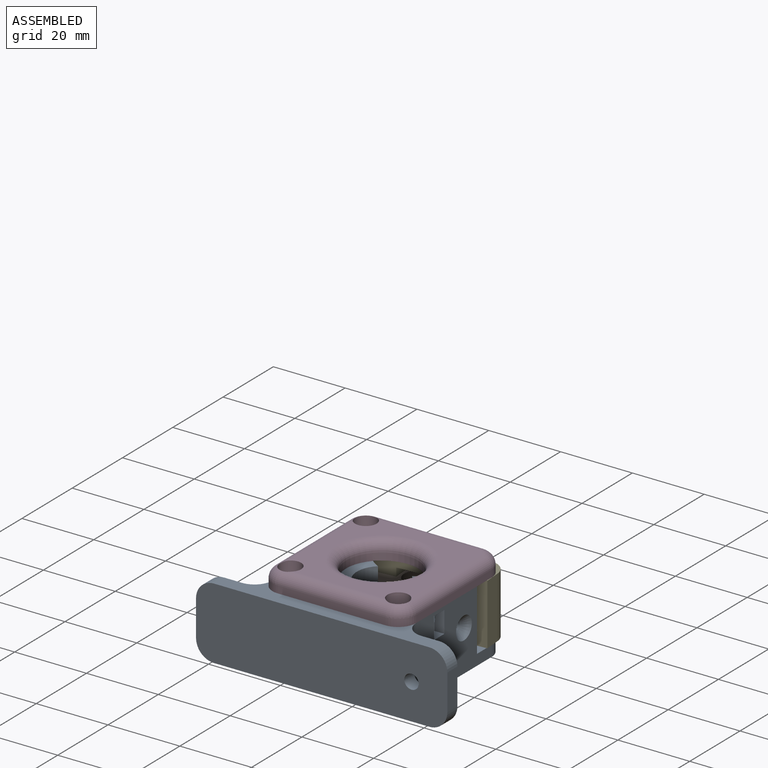
[diagram: assembled view]
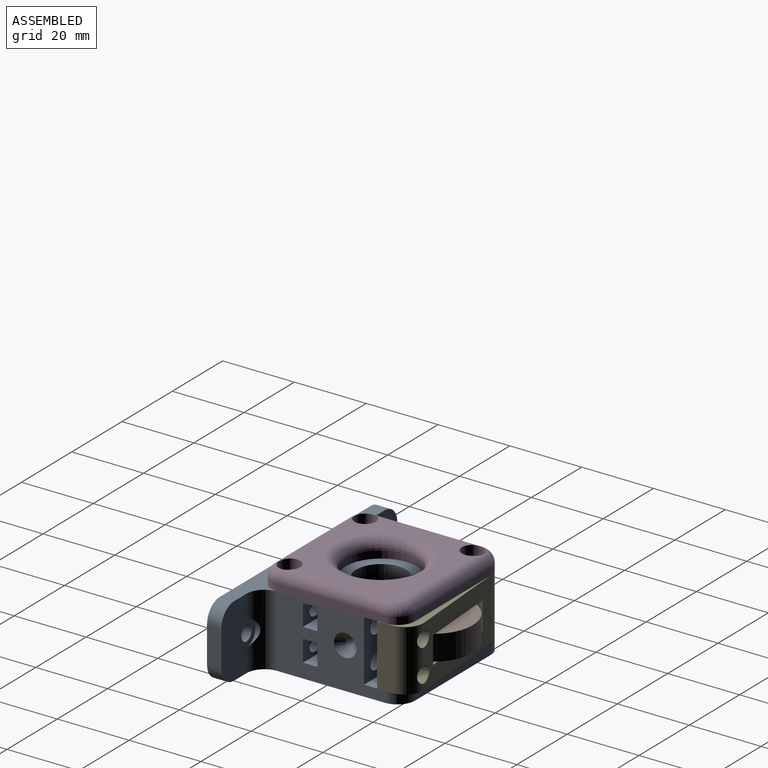
[diagram: assembled view, second angle]
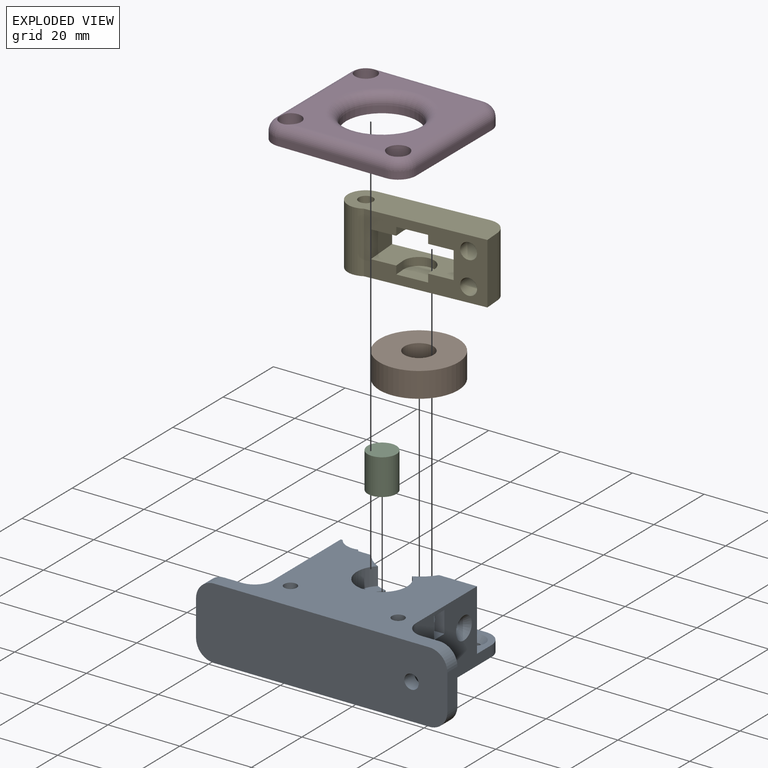
[diagram: exploded view]
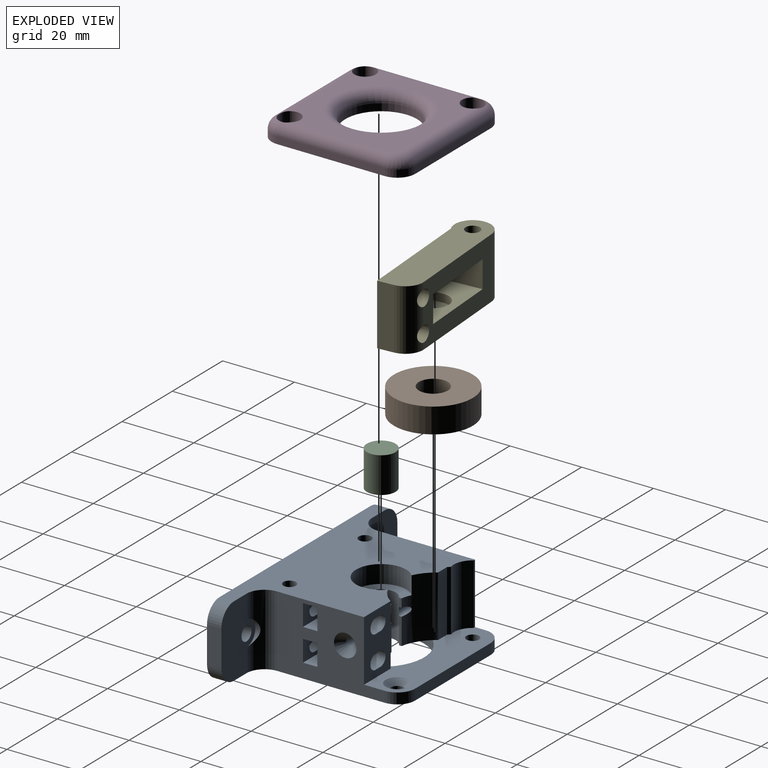
[diagram: exploded view, second angle]
ASSEMBLY  parts=5 mates=4
PART A: 76 faces, bbox 70x44x20 mm
  f0: plane 17x10.57mm, normal (0,1,0), area 138.5mm2, adj f6,f13,f16,f29,f63,f64,f65,f66
  f1: cylinder r=1.15mm len=11mm, axis (-1,0,0), area 71.8mm2, adj f4,f19,f32,f33,f55
  f2: cylinder r=5mm len=20mm, axis (0,0,-1), area 136.4mm2, adj f6,f14,f17,f29,f38
  f3: plane 2.43x0.7mm, normal (-1,0,0), area 1.7mm2, adj f16,f32,f34,f35
  f4: plane 2.43x0.7mm, normal (1,0,0), area 1.7mm2, adj f1,f19,f32,f34
  f5: cylinder r=12mm len=24mm, axis (0,0,-1), area 226.2mm2, adj f13,f14,f30
  f6: plane 30x20mm, normal (1,0,0), area 422.5mm2, adj f0,f2,f7,f13,f14,f29,f36,f45
  f7: cylinder r=5mm len=5mm, axis (0,0,-1), area 23.6mm2, adj f6,f8,f13,f14
  f8: plane 30x3mm, normal (0,1,0), area 90mm2, adj f7,f9,f13,f14
  f9: cylinder r=5mm len=5mm, axis (0,0,-1), area 23.6mm2, adj f8,f10,f13,f14
  f10: plane 30x20mm, normal (-1,0,0), area 515.9mm2, adj f9,f13,f14,f21,f22,f29,f57
  f11: cylinder r=1.75mm len=3.5mm, axis (0,0,-1), area 33mm2, adj f13,f14
  f12: cylinder r=1.75mm len=3.5mm, axis (0,0,-1), area 16.5mm2, adj f14,f44
  f13: plane 40x11.76mm, normal (0,0,1), area 342.3mm2, adj f0,f5,f6,f7,f8,f9,f10,f11
  f14: plane 60x44mm, normal (0,0,-1), area 1349.1mm2, adj f2,f5,f6,f7,f8,f9,f10,f11
  f15: plane 17x3.56mm, normal (0,1,0), area 60.6mm2, adj f13,f19,f29,f43
  f16: cylinder r=11.25mm len=17mm, axis (0,0,-1), area 136.5mm2, adj f0,f3,f13,f18,f29,f30,f31,f34
  f17: plane 20x13.5mm, normal (0,1,0), area 195.9mm2, adj f2,f14,f27,f29,f37,f38,f39,f41
  f18: cylinder r=7mm len=14mm, axis (0,0,-1), area 167.8mm2, adj f16,f19,f29,f34
  f19: cylinder r=11.25mm len=17mm, axis (0,0,-1), area 136.6mm2, adj f1,f4,f13,f15,f18,f29,f30,f33
  f20: cylinder r=5.3mm len=17mm, axis (0,0,-1), area 113.1mm2, adj f13,f21,f29,f43
  f21: plane 17x0.55mm, normal (0,1,0), area 9.3mm2, adj f10,f13,f20,f29
  f22: cylinder r=5mm len=20mm, axis (0,0,-1), area 157.1mm2, adj f10,f14,f23,f29
  f23: plane 20x10mm, normal (0,1,0), area 189.3mm2, adj f14,f22,f24,f29,f40,f42
  f24: plane 10x4mm, normal (-1,0,0), area 40mm2, adj f23,f25,f40,f42
  f25: plane 70x20mm, normal (0,-1,0), area 1366mm2, adj f14,f24,f27,f29,f37,f39,f40,f41
  f26: cylinder r=1.75mm len=20mm, axis (0,0,-1), area 219.9mm2, adj f14,f29
  f27: plane 10x4mm, normal (1,0,0), area 40mm2, adj f17,f25,f39,f41
  f28: cylinder r=1.75mm len=20mm, axis (0,0,-1), area 219.9mm2, adj f14,f29
  f29: plane 60x36.13mm, normal (0,0,1), area 1204.9mm2, adj f0,f2,f6,f10,f15,f16,f17,f18
  f30: plane 24x20.24mm, normal (0,0,-1), area 303.1mm2, adj f5,f16,f19,f31,f32,f33
  f31: plane 7.43x0.7mm, normal (-1,0,0), area 5.2mm2, adj f16,f30,f32,f35
  f32: cylinder r=4.1mm len=12mm, axis (0,0,-1), area 255.2mm2, adj f1,f3,f4,f30,f31,f33,f34,f35
  f33: plane 7.43x0.7mm, normal (1,0,0), area 5.2mm2, adj f1,f19,f30,f32
  f34: plane 14x12.15mm, normal (0,0,1), area 81.5mm2, adj f3,f4,f16,f18,f19,f32
  f35: cylinder r=1.15mm len=16mm, axis (-1,0,0), area 107.9mm2, adj f3,f16,f31,f32,f36
  f36: cone r=1.15mm half-angle=45deg, axis (1,0,0), area 38.2mm2, adj f6,f35
  f37: cylinder r=2mm len=4mm, axis (0,1,0), area 50.3mm2, adj f17,f25
  f38: cylinder r=3.5mm len=7mm, axis (0,-1,0), area 7.5mm2, adj f2,f17
  f39: cylinder r=5mm len=5mm, axis (0,1,0), area 31.4mm2, adj f14,f17,f25,f27
  f40: cylinder r=5mm len=5mm, axis (0,-1,0), area 31.4mm2, adj f14,f23,f24,f25
  f41: cylinder r=5mm len=5mm, axis (0,-1,0), area 31.4mm2, adj f17,f25,f27,f29
  f42: cylinder r=5mm len=5mm, axis (0,1,0), area 31.4mm2, adj f23,f24,f25,f29
  f43: plane 17x0.65mm, normal (0.71,0.71,0), area 15.6mm2, adj f13,f15,f20,f29
  f44: cone r=1.75mm half-angle=45deg, axis (0,0,1), area 33.3mm2, adj f12,f13
  f45: plane 9x6mm, normal (0,-1,0), area 33.4mm2, adj f6,f46,f48,f49,f72,f73,f74,f75
  f46: plane 9x4mm, normal (0,0,-1), area 36mm2, adj f6,f45,f47,f49
  f47: plane 9x6mm, normal (0,1,0), area 33.4mm2, adj f6,f46,f48,f49,f68,f69,f70,f71
  f48: plane 9x4mm, normal (0,0,1), area 36mm2, adj f6,f45,f47,f49
  f49: plane 6x4mm, normal (1,0,0), area 24mm2, adj f45,f46,f47,f48
  f50: plane 9x6mm, normal (0,-1,0), area 33.4mm2, adj f6,f51,f53,f54,f63,f64,f65,f66
  f51: plane 9x4mm, normal (0,0,-1), area 36mm2, adj f6,f50,f52,f54
  f52: plane 9x6mm, normal (0,1,0), area 33.4mm2, adj f6,f51,f53,f54,f59,f60,f61,f62
  f53: plane 9x4mm, normal (0,0,1), area 36mm2, adj f6,f50,f52,f54
  f54: plane 6x4mm, normal (1,0,0), area 24mm2, adj f50,f51,f52,f53
  f55: plane 5.7x5.7mm, normal (-1,0,0), area 21.4mm2, adj f1,f56
  f56: cylinder r=2.85mm len=6.5mm, axis (-1,0,0), area 116.4mm2, adj f55,f57
  f57: torus R=3.35mm, axis (1,0,0), area 15mm2, adj f10,f56
  f58: plane 6x4mm, normal (0,1,0), area 20.6mm2, adj f59,f60,f61,f62
  f59: cylinder r=2mm len=4mm, axis (0,1,0), area 18.8mm2, adj f52,f58,f60,f62
  f60: plane 3x2mm, normal (0,0,1), area 6mm2, adj f52,f58,f59,f61
  f61: cylinder r=2mm len=4mm, axis (0,1,0), area 18.8mm2, adj f52,f58,f60,f62
  f62: plane 3x2mm, normal (0,0,-1), area 6mm2, adj f52,f58,f59,f61
  f63: plane 13x2mm, normal (0,0,-1), area 26mm2, adj f0,f50,f64,f66
  f64: cylinder r=2mm len=13mm, axis (0,1,0), area 81.7mm2, adj f0,f50,f63,f65
  f65: plane 13x2mm, normal (0,0,1), area 26mm2, adj f0,f50,f64,f66
  f66: cylinder r=2mm len=13mm, axis (0,1,0), area 81.7mm2, adj f0,f50,f63,f65
  f67: plane 6x4mm, normal (0,1,0), area 20.6mm2, adj f68,f69,f70,f71
  f68: cylinder r=2mm len=4mm, axis (0,1,0), area 18.8mm2, adj f47,f67,f69,f71
  f69: plane 3x2mm, normal (0,0,-1), area 6mm2, adj f47,f67,f68,f70
  f70: cylinder r=2mm len=4mm, axis (0,1,0), area 18.8mm2, adj f47,f67,f69,f71
  f71: plane 3x2mm, normal (0,0,1), area 6mm2, adj f47,f67,f68,f70
  f72: plane 13x2mm, normal (0,0,1), area 26mm2, adj f0,f45,f73,f75
  f73: cylinder r=2mm len=13mm, axis (0,1,0), area 81.7mm2, adj f0,f45,f72,f74
  f74: plane 13x2mm, normal (0,0,-1), area 26mm2, adj f0,f45,f73,f75
  f75: cylinder r=2mm len=13mm, axis (0,1,0), area 81.7mm2, adj f0,f45,f72,f74
PART B: 4 faces, bbox 22x22x7 mm
  f0: cylinder r=4.05mm len=8.1mm, axis (0,0,-1), area 178.1mm2, adj f2,f3
  f1: cylinder r=11mm len=22mm, axis (0,0,-1), area 483.8mm2, adj f2,f3
  f2: plane 22x22mm, normal (0,0,1), area 328.6mm2, adj f0,f1
  f3: plane 22x22mm, normal (0,0,-1), area 328.6mm2, adj f0,f1
PART C: 3 faces, bbox 8x8x10 mm
  f0: cylinder r=4mm len=10mm, axis (0,0,-1), area 251.3mm2, adj f1,f2
  f1: plane 8x8mm, normal (0,0,1), area 50.3mm2, adj f0
  f2: plane 8x8mm, normal (0,0,-1), area 50.3mm2, adj f0
PART D: 29 faces, bbox 40x40x5.1 mm
  f0: cylinder r=1.5mm len=3mm, axis (0,0,-1), area 18.8mm2, adj f15,f24
  f1: cylinder r=1.5mm len=3mm, axis (0,0,-1), area 18.8mm2, adj f15,f26
  f2: cylinder r=1.5mm len=3mm, axis (0,0,-1), area 18.8mm2, adj f15,f28
  f3: torus R=2.02mm, axis (0,0,1), area 25.2mm2, adj f9,f16,f17,f27
  f4: torus R=2mm, axis (0,0,1), area 24.9mm2, adj f11,f17,f20,f25
  f5: cylinder r=5mm len=5mm, axis (0,0,-1), area 15.7mm2, adj f6,f13,f15,f21
  f6: plane 30x2mm, normal (1,0,0), area 60mm2, adj f5,f7,f15,f19
  f7: cylinder r=5.02mm len=5.02mm, axis (0,0,-1), area 15.8mm2, adj f6,f8,f15,f18
  f8: plane 30x2mm, normal (0,1,0), area 60mm2, adj f7,f9,f15,f16
  f9: cylinder r=5.02mm len=5.02mm, axis (0,0,-1), area 15.8mm2, adj f3,f8,f10,f15
  f10: plane 30x2mm, normal (-1,0,0), area 60mm2, adj f9,f11,f15,f17
  f11: cylinder r=5mm len=5mm, axis (0,0,-1), area 15.7mm2, adj f4,f10,f13,f15
  f12: cylinder r=10mm len=20mm, axis (0,0,-1), area 125.7mm2, adj f15,f22
  f13: plane 30x2mm, normal (0,-1,0), area 60mm2, adj f5,f11,f15,f20
  f14: plane 34.04x34.02mm, normal (0,0,1), area 559.2mm2, adj f16,f17,f18,f19,f20,f22,f23,f25
  f15: plane 40.04x40.02mm, normal (0,0,-1), area 1244.8mm2, adj f0,f1,f2,f5,f6,f7,f8,f9
  f16: cylinder r=3mm len=30mm, axis (1,0,0), area 139.9mm2, adj f3,f8,f14,f18,f27
  f17: cylinder r=3mm len=30mm, axis (0,1,0), area 138.3mm2, adj f3,f4,f10,f14,f25,f27
  f18: torus R=2.02mm, axis (0,0,1), area 29.1mm2, adj f7,f14,f16,f19
  f19: cylinder r=3mm len=30.01mm, axis (0,-1,0), area 139.8mm2, adj f6,f14,f18,f21,f23
  f20: cylinder r=3mm len=30mm, axis (-1,0,0), area 138.2mm2, adj f4,f13,f14,f21,f23,f25
  f21: torus R=2mm, axis (0,0,1), area 24.9mm2, adj f5,f19,f20,f23
  f22: torus R=13mm, axis (0,0,1), area 328.4mm2, adj f12,f14
  f23: cylinder r=3mm len=6mm, axis (0,0,1), area 55.3mm2, adj f14,f19,f20,f21,f24
  f24: plane 6x6mm, normal (0,0,1), area 21.2mm2, adj f0,f23
  f25: cylinder r=3mm len=6mm, axis (0,0,1), area 55.3mm2, adj f4,f14,f17,f20,f26
  f26: plane 6x6mm, normal (0,0,1), area 21.2mm2, adj f1,f25
  f27: cylinder r=3mm len=6mm, axis (0,0,1), area 55.4mm2, adj f3,f14,f16,f17,f28
  f28: plane 6x6mm, normal (0,0,1), area 21.2mm2, adj f2,f27
PART E: 22 faces, bbox 40x17x10 mm
  f0: plane 30x17mm, normal (0,0,-1), area 329.1mm2, adj f1,f4,f6,f7,f8,f9,f10,f11
  f1: plane 22x9.5mm, normal (0,1,0), area 155.2mm2, adj f0,f2,f10,f11,f12,f13,f14
  f2: plane 32.83x17mm, normal (0,0,1), area 323.1mm2, adj f1,f3,f6,f7,f8,f9,f10,f11
  f3: plane 17x4.5mm, normal (1,0,0), area 76.6mm2, adj f2,f4,f7,f8
  f4: cylinder r=5mm len=17mm, axis (0,-1,0), area 117.2mm2, adj f0,f3,f7,f8,f20,f21
  f5: cylinder r=2mm len=17mm, axis (0,-1,0), area 213.6mm2, adj f7,f8
  f6: cylinder r=5mm len=17mm, axis (0,-1,0), area 305.2mm2, adj f0,f2,f7,f8
  f7: plane 40x10mm, normal (0,1,0), area 354.7mm2, adj f0,f2,f3,f4,f5,f6
  f8: plane 40x10mm, normal (0,-1,0), area 354.7mm2, adj f0,f2,f3,f4,f5,f6
  f9: plane 22x9.5mm, normal (0,-1,0), area 155.2mm2, adj f0,f2,f10,f11,f16,f17,f18
  f10: plane 9.5x7.5mm, normal (-1,0,0), area 71.3mm2, adj f0,f1,f2,f9
  f11: plane 9.5x7.5mm, normal (1,0,0), area 71.3mm2, adj f0,f1,f2,f9
  f12: plane 3x2.25mm, normal (-1,0,0), area 6.8mm2, adj f1,f2,f13,f15
  f13: cylinder r=4.25mm len=8.5mm, axis (0,1,0), area 30mm2, adj f1,f12,f14,f15
  f14: plane 3x2.25mm, normal (1,0,0), area 6.8mm2, adj f1,f2,f13,f15
  f15: plane 8.5x7.25mm, normal (0,1,0), area 53.9mm2, adj f2,f12,f13,f14
  f16: plane 3x2.25mm, normal (-1,0,0), area 6.8mm2, adj f2,f9,f17,f19
  f17: cylinder r=4.25mm len=8.5mm, axis (0,-1,0), area 30mm2, adj f9,f16,f18,f19
  f18: plane 3x2.25mm, normal (1,0,0), area 6.8mm2, adj f2,f9,f17,f19
  f19: plane 8.5x7.25mm, normal (0,-1,0), area 53.9mm2, adj f2,f16,f17,f18
  f20: cylinder r=2.25mm len=9.5mm, axis (0,0,-1), area 132.5mm2, adj f0,f2,f4
  f21: cylinder r=2.25mm len=9.5mm, axis (0,0,-1), area 132.5mm2, adj f0,f2,f4
PLACE A t=(-27.67,42.84,-35.95)mm fixed
PLACE B rot(axis=(0,0,1),25.2deg) t=(-27.6,57.42,-28.2)mm
PLACE C t=(-51.84,25.37,-30.95)mm
PLACE D t=(-27.67,42.84,-35.95)mm
PLACE E rot(axis=(1,0.04,0.04),90.1deg) t=(-28.29,66.9,-52.95)mm
MATE fastened D.f0 <-> A.f26  axis (0,0,-1) through (-12.67,27.84,-15.95)mm
MATE revolute A.f9 <-> E.f5  axis (0,0,-1) through (-42.67,57.84,-32.95)mm
MATE revolute B.f1 <-> E.f13  axis (0,0,-1) through (-27.6,57.42,-28.2)mm
MATE fastened C.f0 <-> A.f5  axis (0,0,1) through (-27.67,42.84,-20.95)mm
